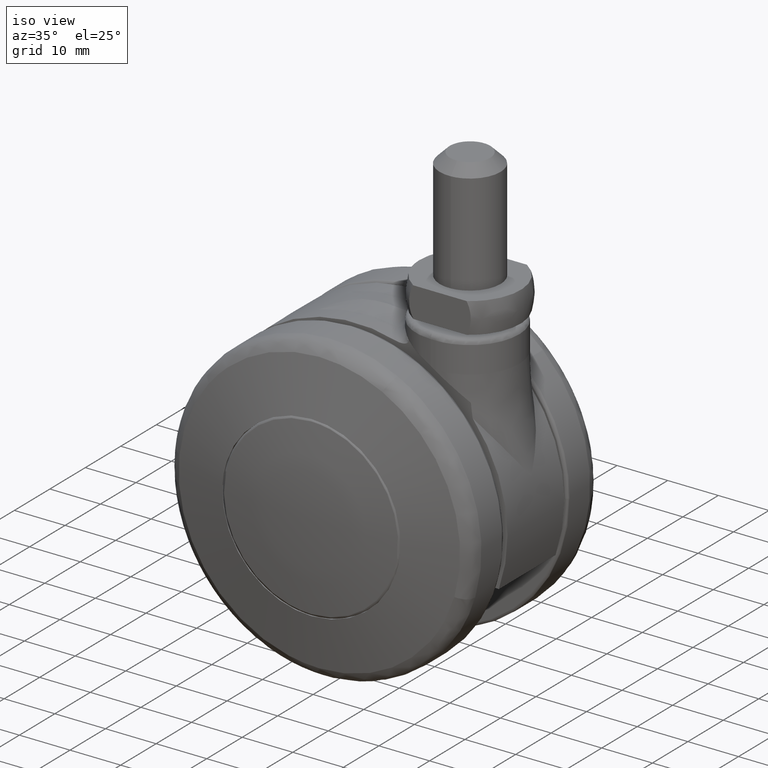
[diagram: clean part render]
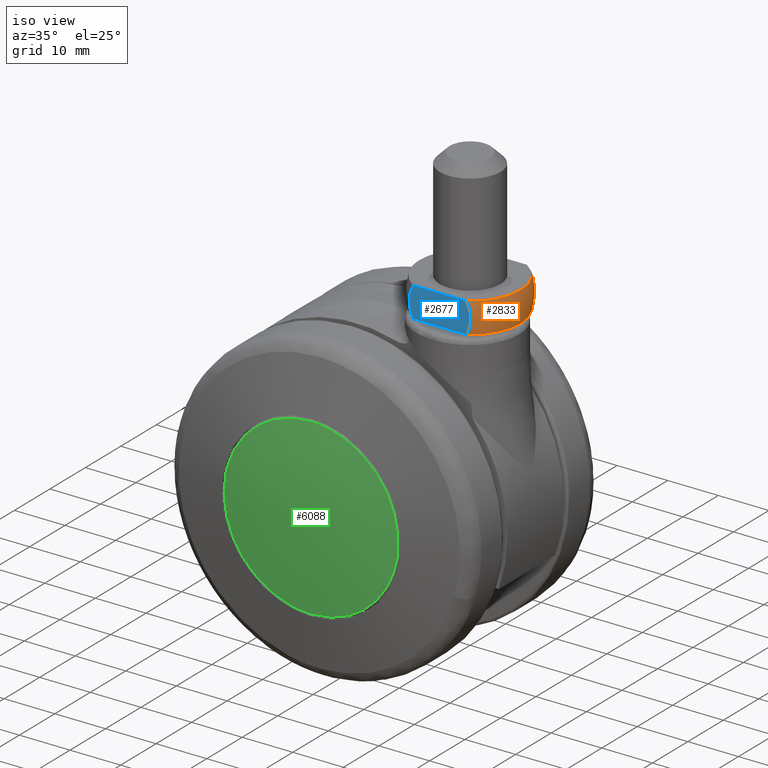
[diagram: same view with three faces highlighted in distinct colors, each labeled with its STEP entity id]
A machine part, iso view with three faces highlighted in distinct colors.
Their STEP definitions:

[orange] entity #2833 — the highlighted face is a freeform B-spline surface patch.
#2583=CARTESIAN_POINT('',(22.267826903324650,8.500000000000000,34.0));
#2584=VERTEX_POINT('',#2583);
#2591=CARTESIAN_POINT('',(22.267826915622049,8.500000000000000,40.0));
#2592=VERTEX_POINT('',#2591);
#2598=CARTESIAN_POINT('',(22.267826903324650,8.500000000000000,34.0));
#2599=CARTESIAN_POINT('',(22.334983241168739,8.500000000000002,34.112491042615488));
#2600=CARTESIAN_POINT('',(22.398567388449258,8.499999999999998,34.227495553251870));
#2601=CARTESIAN_POINT('',(22.518411288828950,8.500000000000002,34.462658171517731));
#2602=CARTESIAN_POINT('',(22.574777453791722,8.500000000000000,34.583139904142641));
#2603=CARTESIAN_POINT('',(22.730261735484842,8.500000000000000,34.947023042857793));
#2604=CARTESIAN_POINT('',(22.816694363230699,8.500000000000002,35.194356753575690));
#2605=CARTESIAN_POINT('',(22.955909452838149,8.499999999999998,35.698294523716037));
#2606=CARTESIAN_POINT('',(23.008693105005431,8.500000000000000,35.954898255218893));
#2607=CARTESIAN_POINT('',(23.061879759538780,8.500000000000000,36.346963563337987));
#2608=CARTESIAN_POINT('',(23.075271971507640,8.500000000000002,36.479305299721361));
#2609=CARTESIAN_POINT('',(23.092890961339009,8.500000000000000,36.742746714432641));
#2610=CARTESIAN_POINT('',(23.097189781211920,8.500000000000002,36.874143072982463));
#2611=CARTESIAN_POINT('',(23.096837478866561,8.499999999999998,37.267379470799590));
#2612=CARTESIAN_POINT('',(23.078994585671310,8.500000000000002,37.528270930281671));
#2613=CARTESIAN_POINT('',(23.025877321016971,8.499999999999998,37.917713161515529));
#2614=CARTESIAN_POINT('',(23.003765123912391,8.499999999999998,38.047210384850189));
#2615=CARTESIAN_POINT('',(22.950560278992679,8.500000000000000,38.305559074856468));
#2616=CARTESIAN_POINT('',(22.919325779412411,8.500000000000000,38.434846171128953));
#2617=CARTESIAN_POINT('',(22.813286985125590,8.500000000000000,38.816478002368143));
#2618=CARTESIAN_POINT('',(22.726099055095649,8.500000000000004,39.063754872715428));
#2619=CARTESIAN_POINT('',(22.520443688352341,8.500000000000000,39.542951833184652));
#2620=CARTESIAN_POINT('',(22.402176168240828,8.500000000000000,39.774958509520140));
#2621=CARTESIAN_POINT('',(22.267826915622049,8.500000000000000,40.0));
#2622=B_SPLINE_CURVE_WITH_KNOTS('',3,(#2598,#2599,#2600,#2601,#2602,#2603,#2604,#2605,#2606,#2607,#2608,#2609,#2610,#2611,#2612,#2613,#2614,#2615,#2616,#2617,#2618,#2619,#2620,#2621),.UNSPECIFIED.,.F.,.U.,(4,2,2,2,2,2,2,2,2,2,2,4),(0.0,0.015625000000000,0.031250000000000,0.062500000000000,0.093750000000000,0.109375000000001,0.125000000000001,0.156250000000001,0.171875000000001,0.187500000000001,0.218750000000000,0.249801643268790),.UNSPECIFIED.);
#2623=EDGE_CURVE('',#2584,#2592,#2622,.T.);
#2633=CARTESIAN_POINT('',(22.267826903324650,-8.500000000000000,34.0));
#2634=VERTEX_POINT('',#2633);
#2635=CARTESIAN_POINT('',(22.267826915622098,-8.500000000000000,39.999999979401053));
#2636=VERTEX_POINT('',#2635);
#2637=CARTESIAN_POINT('',(22.267826903324661,-8.499999999999996,33.999999999999993));
#2638=CARTESIAN_POINT('',(22.334983241168750,-8.500000000000000,34.112491042615503));
#2639=CARTESIAN_POINT('',(22.398567388449269,-8.499999999999996,34.227495553251870));
#2640=CARTESIAN_POINT('',(22.518411288828961,-8.499999999999998,34.462658171517752));
#2641=CARTESIAN_POINT('',(22.574777453791729,-8.499999999999995,34.583139904142627));
#2642=CARTESIAN_POINT('',(22.730261735484831,-8.499999999999995,34.947023042857779));
#2643=CARTESIAN_POINT('',(22.816694363230699,-8.499999999999996,35.194356753575683));
#2644=CARTESIAN_POINT('',(22.955909452838160,-8.499999999999995,35.698294523716029));
#2645=CARTESIAN_POINT('',(23.008693105005431,-8.499999999999995,35.954898255218893));
#2646=CARTESIAN_POINT('',(23.061879759538780,-8.499999999999995,36.346963563337987));
#2647=CARTESIAN_POINT('',(23.075271971507640,-8.499999999999996,36.479305299721339));
#2648=CARTESIAN_POINT('',(23.092890961339020,-8.499999999999996,36.742746714432641));
#2649=CARTESIAN_POINT('',(23.097189781211920,-8.499999999999996,36.874143072982463));
#2650=CARTESIAN_POINT('',(23.096837478866561,-8.499999999999995,37.267379470799582));
#2651=CARTESIAN_POINT('',(23.078994585671321,-8.499999999999998,37.528270930281671));
#2652=CARTESIAN_POINT('',(23.025877321016988,-8.499999999999995,37.917713161515522));
#2653=CARTESIAN_POINT('',(23.003765123912402,-8.499999999999998,38.047210384850210));
#2654=CARTESIAN_POINT('',(22.950560278992700,-8.499999999999995,38.305559074856468));
#2655=CARTESIAN_POINT('',(22.919325779412421,-8.499999999999995,38.434846171128960));
#2656=CARTESIAN_POINT('',(22.813286985125600,-8.499999999999993,38.816478002368143));
#2657=CARTESIAN_POINT('',(22.726099055095649,-8.499999999999995,39.063754872715407));
#2658=CARTESIAN_POINT('',(22.520443690658020,-8.499999999999995,39.542951827812232));
#2659=CARTESIAN_POINT('',(22.402176173561511,-8.499999999999995,39.774958499082473));
#2660=CARTESIAN_POINT('',(22.267826915622098,-8.500000000000000,39.999999979401053));
#2661=B_SPLINE_CURVE_WITH_KNOTS('',3,(#2637,#2638,#2639,#2640,#2641,#2642,#2643,#2644,#2645,#2646,#2647,#2648,#2649,#2650,#2651,#2652,#2653,#2654,#2655,#2656,#2657,#2658,#2659,#2660),.UNSPECIFIED.,.F.,.U.,(4,2,2,2,2,2,2,2,2,2,2,4),(0.0,0.015625000000001,0.031250000000001,0.062500000000004,0.093750000000006,0.109375000000007,0.125000000000008,0.156250000000011,0.171875000000013,0.187500000000014,0.218750000000016,0.249801642570325),.UNSPECIFIED.);
#2662=EDGE_CURVE('',#2634,#2636,#2661,.T.);
#2743=CARTESIAN_POINT('',(22.267826915622049,8.500000000000000,40.0));
#2744=CARTESIAN_POINT('',(27.000000020647626,5.567262487995726,39.999999979401039));
#2745=CARTESIAN_POINT('',(27.000000020647619,0.0,39.999999979401053));
#2746=CARTESIAN_POINT('',(27.000000020647626,-5.567262487995699,39.999999979401039));
#2747=CARTESIAN_POINT('',(22.267826915622091,-8.499999999999989,39.999999979401053));
#2755=(BOUNDED_CURVE()B_SPLINE_CURVE(2,(#2743,#2744,#2745,#2746,#2747),.UNSPECIFIED.,.F.,.U.)B_SPLINE_CURVE_WITH_KNOTS((3,2,3),(0.0,0.500000000000000,1.0),.UNSPECIFIED.)CURVE()GEOMETRIC_REPRESENTATION_ITEM()RATIONAL_B_SPLINE_CURVE((1.0,0.873722693557437,1.0,0.873722693557437,1.0))REPRESENTATION_ITEM(''));
#2756=EDGE_CURVE('',#2592,#2636,#2755,.T.);
#2779=CARTESIAN_POINT('',(22.267826903324650,8.500000000000000,34.0));
#2780=CARTESIAN_POINT('',(27.000000020647619,5.567262494842013,34.000000020598947));
#2781=CARTESIAN_POINT('',(27.000000020647619,0.0,34.000000020598947));
#2782=CARTESIAN_POINT('',(27.000000020647619,-5.567262494842013,34.000000020598947));
#2783=CARTESIAN_POINT('',(22.267826903324650,-8.500000000000000,34.0));
#2791=(BOUNDED_CURVE()B_SPLINE_CURVE(2,(#2779,#2780,#2781,#2782,#2783),.UNSPECIFIED.,.F.,.U.)B_SPLINE_CURVE_WITH_KNOTS((3,2,3),(0.0,0.500000000000000,1.0),.UNSPECIFIED.)CURVE()GEOMETRIC_REPRESENTATION_ITEM()RATIONAL_B_SPLINE_CURVE((1.0,0.873722693303212,1.0,0.873722693303212,1.0))REPRESENTATION_ITEM(''));
#2792=EDGE_CURVE('',#2584,#2634,#2791,.T.);
#2804=CARTESIAN_POINT('',(21.656327215090670,8.743483306298941,33.716165167152013));
#2805=CARTESIAN_POINT('',(22.192967301305782,9.751166705374951,37.000000508377255));
#2806=CARTESIAN_POINT('',(21.656327066851581,8.743483027940926,40.283835739960033));
#2807=CARTESIAN_POINT('',(26.906052869913538,5.947750806792567,33.716165167152006));
#2808=CARTESIAN_POINT('',(28.047722005392970,6.633227011170749,37.000000508377255));
#2809=CARTESIAN_POINT('',(26.906052554543887,5.947750617439644,40.283835739960033));
#2810=CARTESIAN_POINT('',(26.906052869913548,0.0,33.716165167152027));
#2811=CARTESIAN_POINT('',(28.047722005392970,0.0,37.000000508377255));
#2812=CARTESIAN_POINT('',(26.906052554543901,0.0,40.283835739960018));
#2813=CARTESIAN_POINT('',(26.906052869913538,-5.947751379674218,33.716165167152013));
#2814=CARTESIAN_POINT('',(28.047722005392970,-6.633227650076810,37.000000508377248));
#2815=CARTESIAN_POINT('',(26.906052554543891,-5.947751190321276,40.283835739960018));
#2816=CARTESIAN_POINT('',(21.656326471762704,-8.743483702156956,33.716165167152035));
#2817=CARTESIAN_POINT('',(22.192966472309518,-9.751167146855460,37.000000508377269));
#2818=CARTESIAN_POINT('',(21.656326323523619,-8.743483423798926,40.283835739960018));
#2826=(BOUNDED_SURFACE()B_SPLINE_SURFACE(2,2,((#2804,#2807,#2810,#2813,#2816),(#2805,#2808,#2811,#2814,#2817),(#2806,#2809,#2812,#2815,#2818)),.UNSPECIFIED.,.F.,.F.,.U.)B_SPLINE_SURFACE_WITH_KNOTS((3,3),(3,2,3),(0.0,6.754970811932951),(0.0,11.582070880209770,23.164142653807541),.UNSPECIFIED.)GEOMETRIC_REPRESENTATION_ITEM()RATIONAL_B_SPLINE_SURFACE(((0.833809151924135,0.765291032257771,0.955619197903836,0.765291017576727,0.833809162494486),(0.787569830891440,0.722851419257182,0.902624837293960,0.722851405390282,0.787569840875606),(0.833809165446999,0.765291044669396,0.955619213402236,0.765291029988351,0.833809176017350)))REPRESENTATION_ITEM('')SURFACE());
#2827=ORIENTED_EDGE('',*,*,#2792,.F.);
#2828=ORIENTED_EDGE('',*,*,#2623,.T.);
#2829=ORIENTED_EDGE('',*,*,#2756,.T.);
#2830=ORIENTED_EDGE('',*,*,#2662,.F.);
#2831=EDGE_LOOP('',(#2827,#2828,#2829,#2830));
#2832=FACE_OUTER_BOUND('',#2831,.T.);
#2833=ADVANCED_FACE('',(#2832),#2826,.T.);

[blue] entity #2677 — the highlighted face is a freeform B-spline surface patch.
#2427=CARTESIAN_POINT('',(11.732173084377919,-8.500000000000000,40.0));
#2428=VERTEX_POINT('',#2427);
#2459=CARTESIAN_POINT('',(11.732173096675339,-8.500000000000000,34.0));
#2460=VERTEX_POINT('',#2459);
#2474=CARTESIAN_POINT('',(11.732173084377919,-8.500000000000000,40.0));
#2475=CARTESIAN_POINT('',(11.598142456138740,-8.500000000000000,39.775494250011100));
#2476=CARTESIAN_POINT('',(11.480420853642300,-8.500000000000002,39.544563033315512));
#2477=CARTESIAN_POINT('',(11.275192295875810,-8.500000000000000,39.067166780951112));
#2478=CARTESIAN_POINT('',(11.188102753278351,-8.499999999999998,38.820537292224827));
#2479=CARTESIAN_POINT('',(11.082213887308409,-8.500000000000000,38.440843799382492));
#2480=CARTESIAN_POINT('',(11.051054951752290,-8.499999999999996,38.312649259338457));
#2481=CARTESIAN_POINT('',(10.997259504024891,-8.500000000000000,38.052902498292298));
#2482=CARTESIAN_POINT('',(10.974864161588780,-8.499999999999996,37.922501337758113));
#2483=CARTESIAN_POINT('',(10.921072701193109,-8.499999999999998,37.530032942629852));
#2484=CARTESIAN_POINT('',(10.902983536434240,-8.499999999999998,37.266574274467693));
#2485=CARTESIAN_POINT('',(10.902867370452199,-8.500000000000000,36.735977893523760));
#2486=CARTESIAN_POINT('',(10.920836844630470,-8.499999999999996,36.473809108610951));
#2487=CARTESIAN_POINT('',(10.991313828847790,-8.500000000000000,35.955409715478091));
#2488=CARTESIAN_POINT('',(11.043826554054389,-8.499999999999995,35.699189801637509));
#2489=CARTESIAN_POINT('',(11.148776814293701,-8.500000000000002,35.319376149044217));
#2490=CARTESIAN_POINT('',(11.188137771805270,-8.499999999999998,35.193526717689132));
#2491=CARTESIAN_POINT('',(11.275838612908951,-8.500000000000002,34.943376708041178));
#2492=CARTESIAN_POINT('',(11.323797896967580,-8.499999999999998,34.820197466476259));
#2493=CARTESIAN_POINT('',(11.479116266427400,-8.499999999999996,34.457648559128252));
#2494=CARTESIAN_POINT('',(11.598092407606700,-8.499999999999998,34.224593493215053));
#2495=CARTESIAN_POINT('',(11.732173096675350,-8.499999999999998,34.0));
#2496=B_SPLINE_CURVE_WITH_KNOTS('',3,(#2474,#2475,#2476,#2477,#2478,#2479,#2480,#2481,#2482,#2483,#2484,#2485,#2486,#2487,#2488,#2489,#2490,#2491,#2492,#2493,#2494,#2495),.UNSPECIFIED.,.F.,.U.,(4,2,2,2,2,2,2,2,2,2,4),(0.750403753690250,0.781250000000012,0.812500000000010,0.828125000000009,0.843750000000008,0.875000000000006,0.906250000000004,0.937500000000003,0.953125000000002,0.968750000000002,1.0),.UNSPECIFIED.);
#2497=EDGE_CURVE('',#2428,#2460,#2496,.T.);
#2628=CARTESIAN_POINT('',(10.293827733436469,-8.500000000000000,33.700300011629160));
#2629=CARTESIAN_POINT('',(23.706171832472410,-8.500000000000000,33.700300011629160));
#2630=CARTESIAN_POINT('',(10.293827733436469,-8.500000000000000,40.299700149303384));
#2631=CARTESIAN_POINT('',(23.706171832472410,-8.500000000000000,40.299700149303384));
#2632=B_SPLINE_SURFACE_WITH_KNOTS('',1,1,((#2628,#2630),(#2629,#2631)),.UNSPECIFIED.,.F.,.F.,.U.,(2,2),(2,2),(0.0,13.412344099035939),(0.0,6.599400137674216),.UNSPECIFIED.);
#2633=CARTESIAN_POINT('',(22.267826903324650,-8.500000000000000,34.0));
#2634=VERTEX_POINT('',#2633);
#2635=CARTESIAN_POINT('',(22.267826915622098,-8.500000000000000,39.999999979401053));
#2636=VERTEX_POINT('',#2635);
#2637=CARTESIAN_POINT('',(22.267826903324661,-8.499999999999996,33.999999999999993));
#2638=CARTESIAN_POINT('',(22.334983241168750,-8.500000000000000,34.112491042615503));
#2639=CARTESIAN_POINT('',(22.398567388449269,-8.499999999999996,34.227495553251870));
#2640=CARTESIAN_POINT('',(22.518411288828961,-8.499999999999998,34.462658171517752));
#2641=CARTESIAN_POINT('',(22.574777453791729,-8.499999999999995,34.583139904142627));
#2642=CARTESIAN_POINT('',(22.730261735484831,-8.499999999999995,34.947023042857779));
#2643=CARTESIAN_POINT('',(22.816694363230699,-8.499999999999996,35.194356753575683));
#2644=CARTESIAN_POINT('',(22.955909452838160,-8.499999999999995,35.698294523716029));
#2645=CARTESIAN_POINT('',(23.008693105005431,-8.499999999999995,35.954898255218893));
#2646=CARTESIAN_POINT('',(23.061879759538780,-8.499999999999995,36.346963563337987));
#2647=CARTESIAN_POINT('',(23.075271971507640,-8.499999999999996,36.479305299721339));
#2648=CARTESIAN_POINT('',(23.092890961339020,-8.499999999999996,36.742746714432641));
#2649=CARTESIAN_POINT('',(23.097189781211920,-8.499999999999996,36.874143072982463));
#2650=CARTESIAN_POINT('',(23.096837478866561,-8.499999999999995,37.267379470799582));
#2651=CARTESIAN_POINT('',(23.078994585671321,-8.499999999999998,37.528270930281671));
#2652=CARTESIAN_POINT('',(23.025877321016988,-8.499999999999995,37.917713161515522));
#2653=CARTESIAN_POINT('',(23.003765123912402,-8.499999999999998,38.047210384850210));
#2654=CARTESIAN_POINT('',(22.950560278992700,-8.499999999999995,38.305559074856468));
#2655=CARTESIAN_POINT('',(22.919325779412421,-8.499999999999995,38.434846171128960));
#2656=CARTESIAN_POINT('',(22.813286985125600,-8.499999999999993,38.816478002368143));
#2657=CARTESIAN_POINT('',(22.726099055095649,-8.499999999999995,39.063754872715407));
#2658=CARTESIAN_POINT('',(22.520443690658020,-8.499999999999995,39.542951827812232));
#2659=CARTESIAN_POINT('',(22.402176173561511,-8.499999999999995,39.774958499082473));
#2660=CARTESIAN_POINT('',(22.267826915622098,-8.500000000000000,39.999999979401053));
#2661=B_SPLINE_CURVE_WITH_KNOTS('',3,(#2637,#2638,#2639,#2640,#2641,#2642,#2643,#2644,#2645,#2646,#2647,#2648,#2649,#2650,#2651,#2652,#2653,#2654,#2655,#2656,#2657,#2658,#2659,#2660),.UNSPECIFIED.,.F.,.U.,(4,2,2,2,2,2,2,2,2,2,2,4),(0.0,0.015625000000001,0.031250000000001,0.062500000000004,0.093750000000006,0.109375000000007,0.125000000000008,0.156250000000011,0.171875000000013,0.187500000000014,0.218750000000016,0.249801642570325),.UNSPECIFIED.);
#2662=EDGE_CURVE('',#2634,#2636,#2661,.T.);
#2663=ORIENTED_EDGE('',*,*,#2662,.T.);
#2664=CARTESIAN_POINT('',(11.732173084377919,-8.500000000000000,40.0));
#2665=CARTESIAN_POINT('',(22.267826915622098,-8.500000000000000,39.999999979401053));
#2666=QUASI_UNIFORM_CURVE('',1,(#2664,#2665),.UNSPECIFIED.,.F.,.U.);
#2667=EDGE_CURVE('',#2428,#2636,#2666,.T.);
#2668=ORIENTED_EDGE('',*,*,#2667,.F.);
#2669=ORIENTED_EDGE('',*,*,#2497,.T.);
#2670=CARTESIAN_POINT('',(11.732173096675339,-8.500000000000000,34.0));
#2671=CARTESIAN_POINT('',(22.267826903324650,-8.500000000000000,34.0));
#2672=QUASI_UNIFORM_CURVE('',1,(#2670,#2671),.UNSPECIFIED.,.F.,.U.);
#2673=EDGE_CURVE('',#2460,#2634,#2672,.T.);
#2674=ORIENTED_EDGE('',*,*,#2673,.T.);
#2675=EDGE_LOOP('',(#2663,#2668,#2669,#2674));
#2676=FACE_OUTER_BOUND('',#2675,.T.);
#2677=ADVANCED_FACE('',(#2676),#2632,.T.);

[green] entity #6088 — the highlighted face is a freeform B-spline surface patch.
#4045=CARTESIAN_POINT('',(-16.766259925430319,-20.570792996148199,3.759584996789785));
#4046=VERTEX_POINT('',#4045);
#4060=CARTESIAN_POINT('',(0.0,-20.570793001334849,17.182606035498409));
#4061=VERTEX_POINT('',#4060);
#4062=CARTESIAN_POINT('',(0.0,-20.570793001334849,17.182606035498409));
#4063=CARTESIAN_POINT('',(-13.756346607242977,-20.570793001334845,17.182606035498409));
#4064=CARTESIAN_POINT('',(-16.766259925430315,-20.570792996148199,3.759584996789786));
#4072=(BOUNDED_CURVE()B_SPLINE_CURVE(2,(#4062,#4063,#4064),.UNSPECIFIED.,.F.,.U.)B_SPLINE_CURVE_WITH_KNOTS((3,3),(0.0,0.212563823270184),.UNSPECIFIED.)CURVE()GEOMETRIC_REPRESENTATION_ITEM()RATIONAL_B_SPLINE_CURVE((1.0,0.750965990396407,0.925416950437962))REPRESENTATION_ITEM(''));
#4073=EDGE_CURVE('',#4061,#4046,#4072,.T.);
#4075=CARTESIAN_POINT('',(16.953835887423828,-20.570792996683959,-2.794530341142735));
#4076=VERTEX_POINT('',#4075);
#4077=CARTESIAN_POINT('',(16.953835887423825,-20.570792996683970,-2.794530341142735));
#4078=CARTESIAN_POINT('',(17.182606035498402,-20.570793001334849,-1.406629137905496));
#4079=CARTESIAN_POINT('',(17.182606035498399,-20.570793001334849,6.674309E-015));
#4080=CARTESIAN_POINT('',(17.182606035498406,-20.570793001334845,17.182606035498406));
#4081=CARTESIAN_POINT('',(0.0,-20.570793001334849,17.182606035498409));
#4089=(BOUNDED_CURVE()B_SPLINE_CURVE(2,(#4077,#4078,#4079,#4080,#4081),.UNSPECIFIED.,.F.,.U.)B_SPLINE_CURVE_WITH_KNOTS((3,2,3),(0.722006108792550,0.750000000000000,1.0),.UNSPECIFIED.)CURVE()GEOMETRIC_REPRESENTATION_ITEM()RATIONAL_B_SPLINE_CURVE((0.941751131911191,0.967203116388546,1.0,0.707106781186547,1.0))REPRESENTATION_ITEM(''));
#4090=EDGE_CURVE('',#4076,#4061,#4089,.T.);
#4143=CARTESIAN_POINT('',(0.0,-20.570793001334849,-17.182606035498392));
#4144=VERTEX_POINT('',#4143);
#4145=CARTESIAN_POINT('',(0.0,-20.570793001334849,-17.182606035498392));
#4146=CARTESIAN_POINT('',(14.582224245798571,-20.570793001334856,-17.182606035498395));
#4147=CARTESIAN_POINT('',(16.953835887423828,-20.570792996683966,-2.794530341142735));
#4155=(BOUNDED_CURVE()B_SPLINE_CURVE(2,(#4145,#4146,#4147),.UNSPECIFIED.,.F.,.U.)B_SPLINE_CURVE_WITH_KNOTS((3,3),(0.500000000000000,0.722006108792550),.UNSPECIFIED.)CURVE()GEOMETRIC_REPRESENTATION_ITEM()RATIONAL_B_SPLINE_CURVE((1.0,0.739903664798003,0.941751131911190))REPRESENTATION_ITEM(''));
#4156=EDGE_CURVE('',#4144,#4076,#4155,.T.);
#4158=CARTESIAN_POINT('',(-16.766259925430319,-20.570792996148203,3.759584996789785));
#4159=CARTESIAN_POINT('',(-17.182606035498399,-20.570793001334852,1.902846117996738));
#4160=CARTESIAN_POINT('',(-17.182606035498399,-20.570793001334849,6.674309E-015));
#4161=CARTESIAN_POINT('',(-17.182606035498406,-20.570793001334845,-17.182606035498392));
#4162=CARTESIAN_POINT('',(0.0,-20.570793001334849,-17.182606035498392));
#4170=(BOUNDED_CURVE()B_SPLINE_CURVE(2,(#4158,#4159,#4160,#4161,#4162),.UNSPECIFIED.,.F.,.U.)B_SPLINE_CURVE_WITH_KNOTS((3,2,3),(0.212563823270184,0.250000000000000,0.500000000000000),.UNSPECIFIED.)CURVE()GEOMETRIC_REPRESENTATION_ITEM()RATIONAL_B_SPLINE_CURVE((0.925416950437962,0.956140790790140,1.0,0.707106781186547,1.0))REPRESENTATION_ITEM(''));
#4171=EDGE_CURVE('',#4046,#4144,#4170,.T.);
#6058=CARTESIAN_POINT('',(-18.713619106772448,-18.575895048365542,-18.716640196103590));
#6059=CARTESIAN_POINT('',(-9.434449688083760,-20.273462740208728,-18.871945533635511));
#6060=CARTESIAN_POINT('',(9.435447419599901,-20.273462740208728,-18.871945533635511));
#6061=CARTESIAN_POINT('',(18.715565570409172,-18.575538935519972,-18.716607616415633));
#6062=CARTESIAN_POINT('',(-18.868949932673722,-20.274015438191032,-9.435998049151731));
#6063=CARTESIAN_POINT('',(-9.513414777991263,-21.999999999999972,-9.514950604691812));
#6064=CARTESIAN_POINT('',(9.514420860387581,-21.999999999999972,-9.514950604691812));
#6065=CARTESIAN_POINT('',(18.870912280114648,-20.273653389045986,-9.435981487760698));
#6066=CARTESIAN_POINT('',(-18.868949932673722,-20.274015438191032,9.435997649286469));
#6067=CARTESIAN_POINT('',(-9.513414777991263,-21.999999999999972,9.514950201480810));
#6068=CARTESIAN_POINT('',(9.514420860387581,-21.999999999999972,9.514950201480810));
#6069=CARTESIAN_POINT('',(18.870912280114648,-20.273653389045986,9.435981087896137));
#6070=CARTESIAN_POINT('',(-18.713619119828859,-18.575895191101836,18.716639416014996));
#6071=CARTESIAN_POINT('',(-9.434449694720742,-20.273462885323603,18.871944747183200));
#6072=CARTESIAN_POINT('',(9.435447426237587,-20.273462885323603,18.871944747183200));
#6073=CARTESIAN_POINT('',(18.715565583466915,-18.575539078255762,18.716606836328378));
#6081=(BOUNDED_SURFACE()B_SPLINE_SURFACE(2,2,((#6058,#6062,#6066,#6070),(#6059,#6063,#6067,#6071),(#6060,#6064,#6068,#6072),(#6061,#6065,#6069,#6073)),.UNSPECIFIED.,.F.,.F.,.U.)B_SPLINE_SURFACE_WITH_KNOTS((3,1,3),(3,1,3),(29.893229868030549,48.390443240193122,66.889612768077853),(29.890243714809419,48.390443240193122,66.890641981601718),.UNSPECIFIED.)GEOMETRIC_REPRESENTATION_ITEM()RATIONAL_B_SPLINE_SURFACE(((1.016737032394589,1.008367165309787,1.008367165309787,1.016737031685216),(1.008369867084801,1.0,1.0,1.008369866375429),(1.008369867084801,1.0,1.0,1.008369866375429),(1.016738802211851,1.008368935127050,1.008368935127050,1.016738801502478)))REPRESENTATION_ITEM('')SURFACE());
#6082=ORIENTED_EDGE('',*,*,#4073,.T.);
#6083=ORIENTED_EDGE('',*,*,#4171,.T.);
#6084=ORIENTED_EDGE('',*,*,#4156,.T.);
#6085=ORIENTED_EDGE('',*,*,#4090,.T.);
#6086=EDGE_LOOP('',(#6082,#6083,#6084,#6085));
#6087=FACE_OUTER_BOUND('',#6086,.T.);
#6088=ADVANCED_FACE('',(#6087),#6081,.T.);